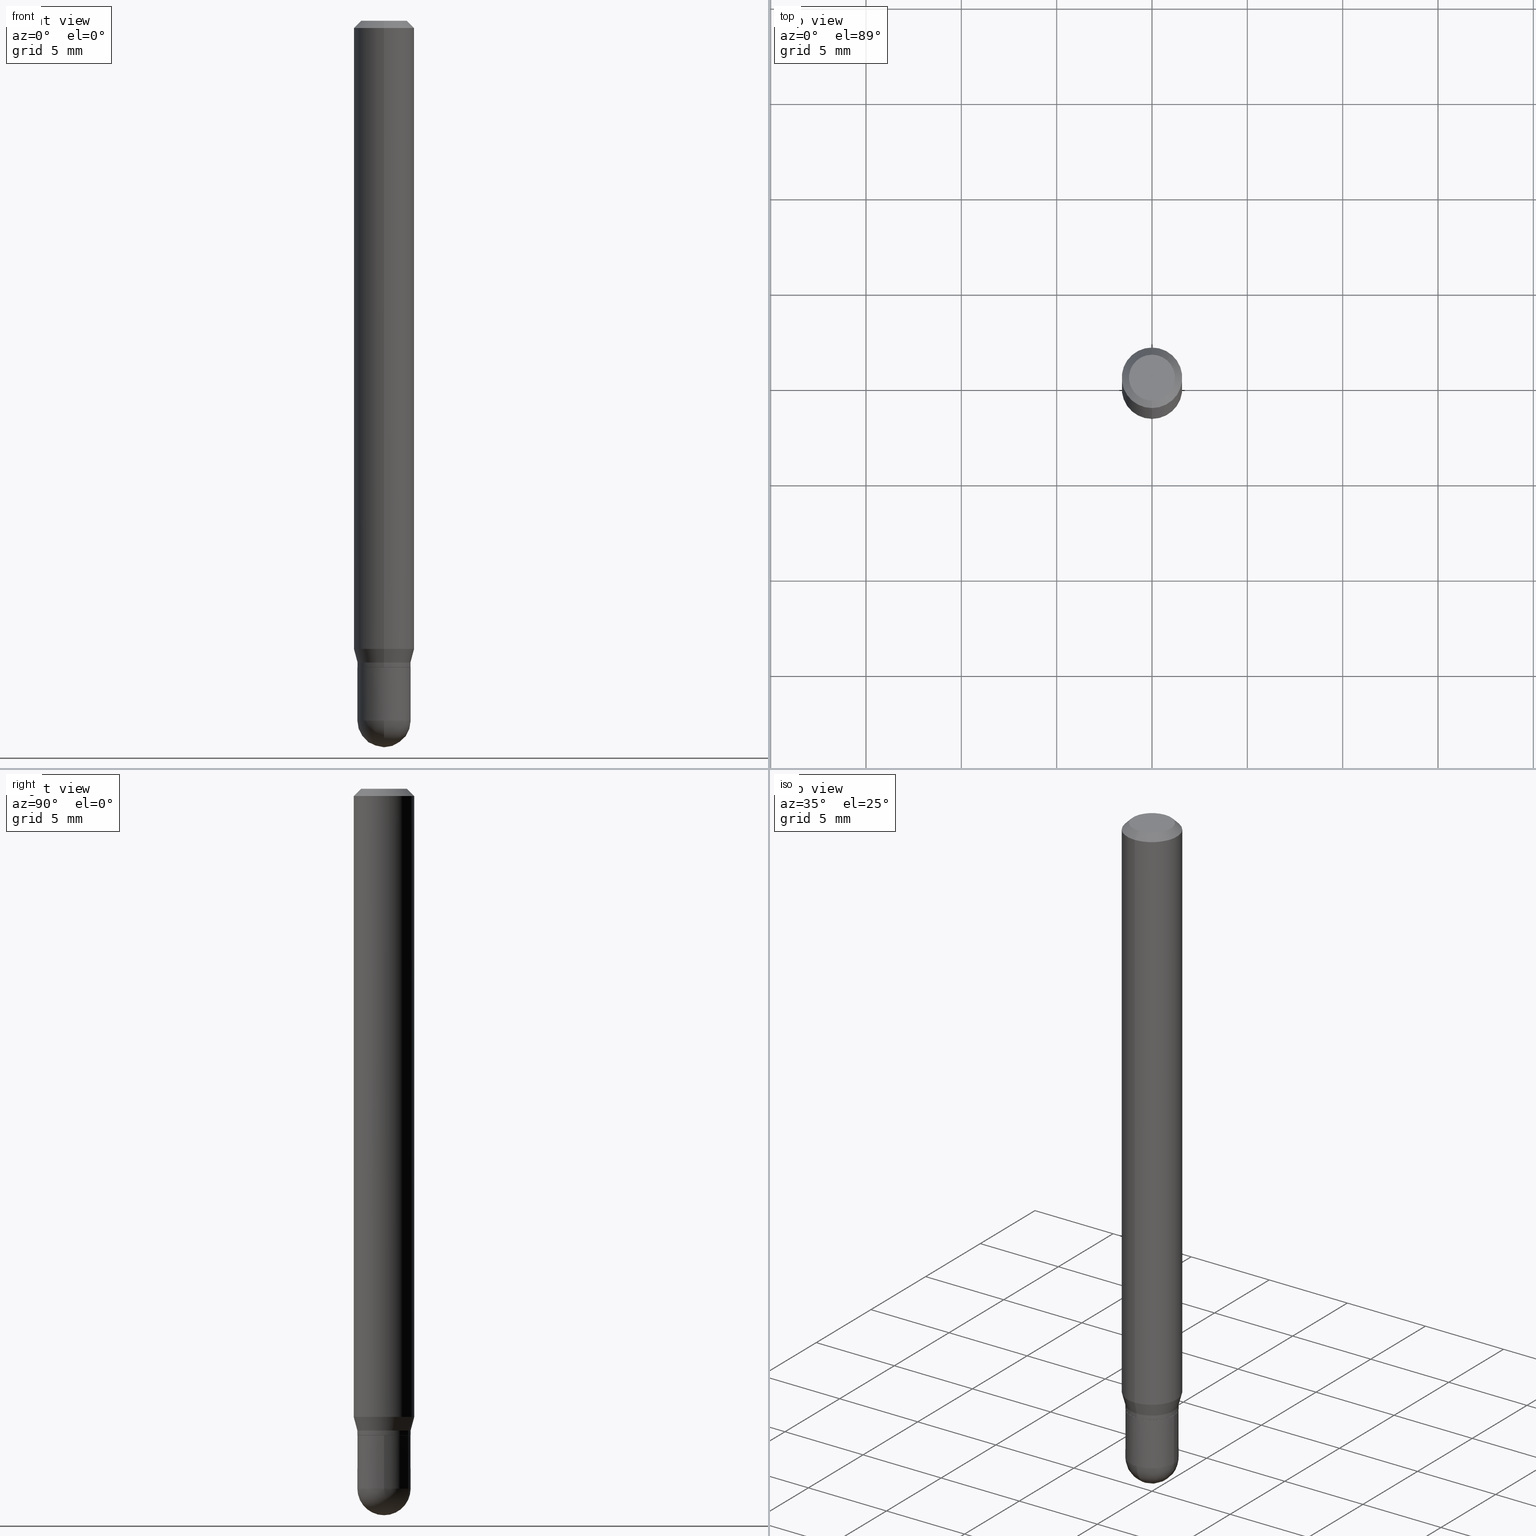
[diagram: canonical four-view strip — front | top / right | iso, engineering-drawing reading convention]
A machine part, canonical four-view strip (front | top / right | iso — engineering-drawing reading convention). The complete STEP part file that produces these views, byte-faithful:
ISO-10303-21;
HEADER;
FILE_DESCRIPTION (( 'STEP AP203' ),
    '1' );
FILE_NAME ('01430.STEP',
    '2024-03-07T20:46:20',
    ( '' ),
    ( '' ),
    'SwSTEP 2.0',
    'SolidWorks 2023',
    '' );
FILE_SCHEMA (( 'CONFIG_CONTROL_DESIGN' ));
ENDSEC;

DATA;
#1 = ADVANCED_FACE ( 'NONE', ( #259 ), #266, .T. ) ;
#2 = CARTESIAN_POINT ( 'NONE',  ( -3.773273898774340269E-16, -0.04749999999999999362, 1.569983304665834349E-16 ) ) ;
#3 = DIRECTION ( 'NONE',  ( -2.445371144208507908E-29, 3.491621196352252256E-15, 1.000000000000000000 ) ) ;
#4 = CIRCLE ( 'NONE', #491, 0.05499999999999992395 ) ;
#5 = EDGE_LOOP ( 'NONE', ( #490, #299, #226, #386 ) ) ;
#6 = FACE_OUTER_BOUND ( 'NONE', #368, .T. ) ;
#7 = ORIENTED_EDGE ( 'NONE', *, *, #268, .T. ) ;
#8 = APPLICATION_CONTEXT ( 'configuration controlled 3d designs of mechanical parts and assemblies' ) ;
#9 = CARTESIAN_POINT ( 'NONE',  ( -3.840629472727099789E-16, -0.05500000000000514894, -1.444999999999999840 ) ) ;
#10 = ORIENTED_EDGE ( 'NONE', *, *, #291, .F. ) ;
#11 = EDGE_CURVE ( 'NONE', #217, #338, #206, .T. ) ;
#12 = CARTESIAN_POINT ( 'NONE',  ( 3.528999010347036160E-29, -5.051926092023656149E-15, -1.445000000000000062 ) ) ;
#13 = ORIENTED_EDGE ( 'NONE', *, *, #268, .F. ) ;
#14 = AXIS2_PLACEMENT_3D ( 'NONE', #275, #470, #82 ) ;
#15 = CARTESIAN_POINT ( 'NONE',  ( 3.264570477518358750E-29, -4.661314297130257366E-15, -1.335000000000000187 ) ) ;
#16 = ORIENTED_EDGE ( 'NONE', *, *, #454, .F. ) ;
#17 = ADVANCED_FACE ( 'NONE', ( #23 ), #465, .T. ) ;
#18 = CARTESIAN_POINT ( 'NONE',  ( -0.05500000000000000028, 3.907985046680551042E-16, -2.705414299640198362E-30 ) ) ;
#19 = ORIENTED_EDGE ( 'NONE', *, *, #395, .F. ) ;
#20 = DIRECTION ( 'NONE',  ( -6.982962677686265922E-15, -1.000000000000000000, 4.966996352116849387E-15 ) ) ;
#21 = ORIENTED_EDGE ( 'NONE', *, *, #11, .T. ) ;
#22 = CYLINDRICAL_SURFACE ( 'NONE', #285, 0.06250000000000000000 ) ;
#23 = FACE_OUTER_BOUND ( 'NONE', #342, .T. ) ;
#24 = EDGE_CURVE ( 'NONE', #254, #249, #180, .T. ) ;
#25 = DIRECTION ( 'NONE',  ( -6.982962677686266711E-15, -1.000000000000000000, 3.491621196352252651E-15 ) ) ;
#26 = VERTEX_POINT ( 'NONE', #121 ) ;
#27 = ORIENTED_EDGE ( 'NONE', *, *, #309, .F. ) ;
#28 = APPROVAL_DATE_TIME ( #73, #302 ) ;
#29 = AXIS2_PLACEMENT_3D ( 'NONE', #509, #191, #81 ) ;
#30 = CARTESIAN_POINT ( 'NONE',  ( -3.840629472727440972E-16, -0.05499999999999992395, 1.920391657993736236E-16 ) ) ;
#31 = APPROVAL_ROLE ( '' ) ;
#32 = FACE_OUTER_BOUND ( 'NONE', #453, .T. ) ;
#33 = APPROVAL_STATUS ( 'not_yet_approved' ) ;
#34 = CARTESIAN_POINT ( 'NONE',  ( 3.264700856257157760E-29, -4.661127587355599122E-15, -1.335000000000000187 ) ) ;
#35 = DATE_AND_TIME ( #504, #68 ) ;
#36 = AXIS2_PLACEMENT_3D ( 'NONE', #149, #349, #393 ) ;
#37 = CARTESIAN_POINT ( 'NONE',  ( 3.872457909892871899E-16, 0.05449999999999533690, -1.335000000000000409 ) ) ;
#38 = VECTOR ( 'NONE', #49, 39.37007874015748143 ) ;
#39 = LINE ( 'NONE', #37, #284 ) ;
#40 = CC_DESIGN_PERSON_AND_ORGANIZATION_ASSIGNMENT ( #471, #273, ( #391 ) ) ;
#41 = CARTESIAN_POINT ( 'NONE',  ( 0.000000000000000000, 0.000000000000000000, 0.000000000000000000 ) ) ;
#42 = ORIENTED_EDGE ( 'NONE', *, *, #369, .F. ) ;
#43 = DIRECTION ( 'NONE',  ( -6.982962677686265922E-15, -1.000000000000000000, 3.491621196352252256E-15 ) ) ;
#44 = AXIS2_PLACEMENT_3D ( 'NONE', #256, #102, #218 ) ;
#45 = CIRCLE ( 'NONE', #228, 0.05500000000000000028 ) ;
#46 = ORIENTED_EDGE ( 'NONE', *, *, #384, .T. ) ;
#47 = CARTESIAN_POINT ( 'NONE',  ( 0.05500000000000000028, -5.045190534628344107E-15, -1.335000000000000187 ) ) ;
#48 = ORIENTED_EDGE ( 'NONE', *, *, #178, .T. ) ;
#49 = DIRECTION ( 'NONE',  ( -2.445371144208507908E-29, 3.491621196352251862E-15, 1.000000000000000000 ) ) ;
#50 = CC_DESIGN_PERSON_AND_ORGANIZATION_ASSIGNMENT ( #431, #502, ( #62 ) ) ;
#51 = ORIENTED_EDGE ( 'NONE', *, *, #506, .T. ) ;
#52 = CARTESIAN_POINT ( 'NONE',  ( 4.440892098500943678E-16, 0.06249999999999548972, -1.297009618943233633 ) ) ;
#53 = EDGE_LOOP ( 'NONE', ( #448, #280, #292, #96 ) ) ;
#54 = EDGE_CURVE ( 'NONE', #282, #358, #198, .T. ) ;
#55 = CIRCLE ( 'NONE', #352, 0.05500000000000000028 ) ;
#56 = APPROVAL_PERSON_ORGANIZATION ( #233, #151, #158 ) ;
#57 = DIRECTION ( 'NONE',  ( 4.937700262164548042E-15, 0.7071067811865451302, -0.7071067811865499042 ) ) ;
#58 = ORIENTED_EDGE ( 'NONE', *, *, #88, .T. ) ;
#59 = APPROVAL ( #114, 'UNSPECIFIED' ) ;
#60 = DIRECTION ( 'NONE',  ( -1.000000000000000000, 6.982962677686265922E-15, -4.876176775795935793E-29 ) ) ;
#61 = DIRECTION ( 'NONE',  ( -6.982962677686265922E-15, -1.000000000000000000, 4.966996352116849387E-15 ) ) ;
#62 = PRODUCT ( '01430', '01430', '', ( #263 ) ) ;
#63 = DIRECTION ( 'NONE',  ( -2.445371144208507908E-29, 3.491621196352252256E-15, 1.000000000000000000 ) ) ;
#64 = EDGE_CURVE ( 'NONE', #321, #373, #155, .T. ) ;
#65 = ORIENTED_EDGE ( 'NONE', *, *, #446, .F. ) ;
#66 = APPLICATION_CONTEXT ( 'configuration controlled 3d designs of mechanical parts and assemblies' ) ;
#67 = AXIS2_PLACEMENT_3D ( 'NONE', #207, #95, #320 ) ;
#68 = LOCAL_TIME ( 15, 46, 19.00000000000000000, #190 ) ;
#69 = DIRECTION ( 'NONE',  ( -6.982962677686265922E-15, -1.000000000000000000, 3.491621196352252256E-15 ) ) ;
#70 = ORIENTED_EDGE ( 'NONE', *, *, #161, .T. ) ;
#71 = CALENDAR_DATE ( 2024, 7, 3 ) ;
#72 = ORIENTED_EDGE ( 'NONE', *, *, #419, .F. ) ;
#73 = DATE_AND_TIME ( #429, #400 ) ;
#74 = CARTESIAN_POINT ( 'NONE',  ( 3.661148087391975640E-29, -5.247325344357685057E-15, -1.500000000000000222 ) ) ;
#75 = EDGE_CURVE ( 'NONE', #209, #338, #39, .T. ) ;
#76 = CLOSED_SHELL ( 'NONE', ( #203, #443, #1, #274, #496, #17, #387, #258, #473, #489, #141, #132 ) ) ;
#77 = APPROVAL_STATUS ( 'not_yet_approved' ) ;
#78 = CARTESIAN_POINT ( 'NONE',  ( 3.533702424937522517E-29, -5.045190534628345684E-15, -1.445000000000000062 ) ) ;
#79 = DIRECTION ( 'NONE',  ( -2.445371144208507908E-29, 3.491621196352252256E-15, 1.000000000000000000 ) ) ;
#80 = APPROVAL_DATE_TIME ( #35, #59 ) ;
#81 = DIRECTION ( 'NONE',  ( -6.982962677686265922E-15, -1.000000000000000000, 5.012565125989473962E-15 ) ) ;
#82 = DIRECTION ( 'NONE',  ( -6.982962677686265922E-15, -1.000000000000000000, 4.966996352116824932E-15 ) ) ;
#83 = AXIS2_PLACEMENT_3D ( 'NONE', #293, #63, #20 ) ;
#84 = CONICAL_SURFACE ( 'NONE', #335, 0.05499999999999992395, 0.2617993877991495744 ) ;
#85 = DIRECTION ( 'NONE',  ( -6.982962677686265922E-15, -1.000000000000000000, 4.966996352116824932E-15 ) ) ;
#86 = DIRECTION ( 'NONE',  ( -2.445468806185136597E-29, 3.491481338843145583E-15, 1.000000000000000000 ) ) ;
#87 = ORIENTED_EDGE ( 'NONE', *, *, #404, .F. ) ;
#88 = EDGE_CURVE ( 'NONE', #185, #301, #350, .T. ) ;
#89 = LINE ( 'NONE', #476, #99 ) ;
#90 = AXIS2_PLACEMENT_3D ( 'NONE', #34, #437, #236 ) ;
#91 = VECTOR ( 'NONE', #288, 39.37007874015748143 ) ;
#92 = CC_DESIGN_DATE_AND_TIME_ASSIGNMENT ( #235, #392, ( #219 ) ) ;
#93 = CARTESIAN_POINT ( 'NONE',  ( 3.264570477518358750E-29, -4.661314297130257366E-15, -1.335000000000000187 ) ) ;
#94 = ORIENTED_EDGE ( 'NONE', *, *, #24, .F. ) ;
#95 = DIRECTION ( 'NONE',  ( -2.445371144208507908E-29, 3.491621196352252256E-15, 1.000000000000000000 ) ) ;
#96 = ORIENTED_EDGE ( 'NONE', *, *, #506, .F. ) ;
#97 = DIRECTION ( 'NONE',  ( -2.445371144208507908E-29, 3.491621196352252256E-15, 1.000000000000000000 ) ) ;
#98 = EDGE_LOOP ( 'NONE', ( #167, #331, #42, #126 ) ) ;
#99 = VECTOR ( 'NONE', #125, 39.37007874015748143 ) ;
#100 = CC_DESIGN_APPROVAL ( #151, ( #219 ) ) ;
#101 = CARTESIAN_POINT ( 'NONE',  ( 4.440892098500625669E-16, 0.06250000000000000000, -2.182263247720157660E-16 ) ) ;
#102 = DIRECTION ( 'NONE',  ( 2.445371144208507908E-29, -3.491621196352252256E-15, -1.000000000000000000 ) ) ;
#103 = LINE ( 'NONE', #101, #424 ) ;
#104 = VERTEX_POINT ( 'NONE', #398 ) ;
#105 = EDGE_CURVE ( 'NONE', #373, #249, #264, .T. ) ;
#106 = ORIENTED_EDGE ( 'NONE', *, *, #161, .F. ) ;
#107 = CIRCLE ( 'NONE', #67, 0.06250000000000000000 ) ;
#108 = DIRECTION ( 'NONE',  ( -2.445371144208507908E-29, 3.491621196352252256E-15, 1.000000000000000000 ) ) ;
#109 = ORIENTED_EDGE ( 'NONE', *, *, #239, .F. ) ;
#110 = CARTESIAN_POINT ( 'NONE',  ( -0.05500000000000000028, -4.462360556323917743E-15, -1.445000000000000062 ) ) ;
#111 = PRODUCT_DEFINITION_SHAPE ( 'NONE', 'NONE',  #219 ) ;
#112 = DIRECTION ( 'NONE',  ( -6.982962677686266711E-15, -1.000000000000000000, 3.491621196352252651E-15 ) ) ;
#113 = AXIS2_PLACEMENT_3D ( 'NONE', #257, #97, #144 ) ;
#114 = APPROVAL_STATUS ( 'not_yet_approved' ) ;
#115 = LOCAL_TIME ( 15, 46, 19.00000000000000000, #507 ) ;
#116 = CARTESIAN_POINT ( 'NONE',  ( -3.840629472727108664E-16, -0.05500000000000450362, -1.334500000000000020 ) ) ;
#117 = EDGE_CURVE ( 'NONE', #187, #26, #483, .T. ) ;
#118 = DIRECTION ( 'NONE',  ( 1.000000000000000000, 0.000000000000000000, 0.000000000000000000 ) ) ;
#119 = CARTESIAN_POINT ( 'NONE',  ( -3.840629472727117046E-16, -0.05500000000000455219, -1.324999999999999956 ) ) ;
#120 = PERSON_AND_ORGANIZATION_ROLE ( 'creator' ) ;
#121 = CARTESIAN_POINT ( 'NONE',  ( 3.907985046680910960E-16, 0.05499999999999503897, -1.445000000000000284 ) ) ;
#122 = CARTESIAN_POINT ( 'NONE',  ( -3.805714659338688453E-16, -0.05450000000000466277, -1.334999999999999742 ) ) ;
#123 = CIRCLE ( 'NONE', #500, 0.06250000000000000000 ) ;
#124 = ORGANIZATION ( 'UNSPECIFIED', 'UNSPECIFIED', '' ) ;
#125 = DIRECTION ( 'NONE',  ( -2.445371144208507908E-29, 3.491621196352251862E-15, 1.000000000000000000 ) ) ;
#126 = ORIENTED_EDGE ( 'NONE', *, *, #64, .F. ) ;
#127 = CARTESIAN_POINT ( 'NONE',  ( 3.668056716312763876E-31, -5.237431794528382255E-17, -0.01500000000000000812 ) ) ;
#128 = ORIENTED_EDGE ( 'NONE', *, *, #105, .T. ) ;
#129 = CARTESIAN_POINT ( 'NONE',  ( 0.000000000000000000, 0.000000000000000000, 0.000000000000000000 ) ) ;
#130 = AXIS2_PLACEMENT_3D ( 'NONE', #472, #196, #112 ) ;
#131 = CONICAL_SURFACE ( 'NONE', #29, 0.05449999999999999983, 0.7853981633974739252 ) ;
#132 = ADVANCED_FACE ( 'NONE', ( #232 ), #265, .T. ) ;
#133 = CYLINDRICAL_SURFACE ( 'NONE', #433, 0.05500000000000000028 ) ;
#134 = ORIENTED_EDGE ( 'NONE', *, *, #291, .T. ) ;
#135 = DIRECTION ( 'NONE',  ( 6.982962677686265922E-15, 1.000000000000000000, -3.491621196352251862E-15 ) ) ;
#136 = ORIENTED_EDGE ( 'NONE', *, *, #64, .T. ) ;
#137 = PLANE ( 'NONE',  #287 ) ;
#138 = ORIENTED_EDGE ( 'NONE', *, *, #54, .T. ) ;
#139 = AXIS2_PLACEMENT_3D ( 'NONE', #127, #410, #323 ) ;
#140 = ORIENTED_EDGE ( 'NONE', *, *, #197, .F. ) ;
#141 = ADVANCED_FACE ( 'NONE', ( #32 ), #131, .T. ) ;
#142 = FACE_OUTER_BOUND ( 'NONE', #175, .T. ) ;
#143 = VERTEX_POINT ( 'NONE', #110 ) ;
#144 = DIRECTION ( 'NONE',  ( -6.982962677686265922E-15, -1.000000000000000000, 5.012565125989473962E-15 ) ) ;
#145 = EDGE_LOOP ( 'NONE', ( #10, #179, #324, #340 ) ) ;
#146 = CIRCLE ( 'NONE', #414, 0.05449999999999999983 ) ;
#147 = DATE_TIME_ROLE ( 'classification_date' ) ;
#148 = ADVANCED_FACE ( 'NONE', ( #201 ), #355, .T. ) ;
#149 = CARTESIAN_POINT ( 'NONE',  ( 3.528999010347036160E-29, -5.051926092023656149E-15, -1.445000000000000062 ) ) ;
#150 = APPROVAL_DATE_TIME ( #341, #151 ) ;
#151 = APPROVAL ( #77, 'UNSPECIFIED' ) ;
#152 = DIRECTION ( 'NONE',  ( -2.445371144208507908E-29, 3.491621196352251862E-15, 1.000000000000000000 ) ) ;
#153 =( CONVERSION_BASED_UNIT ( 'INCH', #307 ) LENGTH_UNIT ( ) NAMED_UNIT ( #231 ) );
#154 = DIRECTION ( 'NONE',  ( -6.982962677686265922E-15, -1.000000000000000000, 3.491621196352252651E-15 ) ) ;
#155 = CIRCLE ( 'NONE', #508, 0.05500000000000000028 ) ;
#156 = CARTESIAN_POINT ( 'NONE',  ( 0.000000000000000000, 0.000000000000000000, 0.000000000000000000 ) ) ;
#157 = CC_DESIGN_PERSON_AND_ORGANIZATION_ASSIGNMENT ( #394, #120, ( #189 ) ) ;
#158 = APPROVAL_ROLE ( '' ) ;
#159 = DIRECTION ( 'NONE',  ( -2.445371144208507908E-29, 3.491621196352252256E-15, 1.000000000000000000 ) ) ;
#160 = CARTESIAN_POINT ( 'NONE',  ( 3.533702424937522517E-29, -5.045190534628345684E-15, -1.445000000000000062 ) ) ;
#161 = EDGE_CURVE ( 'NONE', #104, #456, #123, .T. ) ;
#162 = DIRECTION ( 'NONE',  ( -2.445468806185136597E-29, 3.491481338843145583E-15, 1.000000000000000000 ) ) ;
#163 = ORIENTED_EDGE ( 'NONE', *, *, #105, .F. ) ;
#164 = DIRECTION ( 'NONE',  ( -6.982962677686265922E-15, -1.000000000000000000, 3.483106191921935554E-15 ) ) ;
#165 = PRODUCT_RELATED_PRODUCT_CATEGORY ( 'detail', '', ( #62 ) ) ;
#166 = PERSON ( 'UNSPECIFIED', 'UNSPECIFIED', 'UNSPECIFIED', ('UNSPECIFIED'), ('UNSPECIFIED'), ('UNSPECIFIED') ) ;
#167 = ORIENTED_EDGE ( 'NONE', *, *, #351, .F. ) ;
#168 = FACE_OUTER_BOUND ( 'NONE', #336, .T. ) ;
#169 = EDGE_LOOP ( 'NONE', ( #495, #7, #46, #106 ) ) ;
#170 = EDGE_CURVE ( 'NONE', #358, #442, #503, .T. ) ;
#171 = CARTESIAN_POINT ( 'NONE',  ( 3.533702424937522517E-29, -5.045190534628345684E-15, -1.445000000000000062 ) ) ;
#172 = ORIENTED_EDGE ( 'NONE', *, *, #239, .T. ) ;
#173 = LINE ( 'NONE', #330, #237 ) ;
#174 =( LENGTH_UNIT ( ) NAMED_UNIT ( * ) SI_UNIT ( $, .METRE. ) );
#175 = EDGE_LOOP ( 'NONE', ( #223, #27 ) ) ;
#176 = UNCERTAINTY_MEASURE_WITH_UNIT (LENGTH_MEASURE( 1.000000000000000082E-05 ), #153, 'distance_accuracy_value', 'NONE');
#177 = LINE ( 'NONE', #18, #407 ) ;
#178 = EDGE_CURVE ( 'NONE', #26, #143, #55, .T. ) ;
#179 = ORIENTED_EDGE ( 'NONE', *, *, #419, .T. ) ;
#180 = CIRCLE ( 'NONE', #90, 0.05500000000000000028 ) ;
#181 = CIRCLE ( 'NONE', #467, 0.04749999999999999362 ) ;
#182 = PLANE ( 'NONE',  #252 ) ;
#183 = ORIENTED_EDGE ( 'NONE', *, *, #224, .F. ) ;
#184 = CARTESIAN_POINT ( 'NONE',  ( 0.000000000000000000, 0.000000000000000000, 0.000000000000000000 ) ) ;
#185 = VERTEX_POINT ( 'NONE', #315 ) ;
#186 = APPLICATION_PROTOCOL_DEFINITION ( 'international standard', 'config_control_design', 1994, #8 ) ;
#187 = VERTEX_POINT ( 'NONE', #74 ) ;
#188 = CIRCLE ( 'NONE', #475, 0.05500000000000018763 ) ;
#189 = PRODUCT_DEFINITION_FORMATION_WITH_SPECIFIED_SOURCE ( 'ANY', '', #62, .NOT_KNOWN. ) ;
#190 = COORDINATED_UNIVERSAL_TIME_OFFSET ( 5, 0, .BEHIND. ) ;
#191 = DIRECTION ( 'NONE',  ( -2.445371144208507908E-29, 3.491621196352252256E-15, 1.000000000000000000 ) ) ;
#192 = COORDINATED_UNIVERSAL_TIME_OFFSET ( 5, 0, .BEHIND. ) ;
#193 = CARTESIAN_POINT ( 'NONE',  ( 3.668056716312763876E-31, -5.237431794528382255E-17, -0.01500000000000000812 ) ) ;
#194 = MANIFOLD_SOLID_BREP ( 'Body-Move/Copy2[1]', #359 ) ;
#195 = PERSON_AND_ORGANIZATION_ROLE ( 'creator' ) ;
#196 = DIRECTION ( 'NONE',  ( -2.445371144208507908E-29, 3.491621196352252256E-15, 1.000000000000000000 ) ) ;
#197 = EDGE_CURVE ( 'NONE', #217, #358, #227, .T. ) ;
#198 = CIRCLE ( 'NONE', #379, 0.05499999999999992395 ) ;
#199 = CIRCLE ( 'NONE', #317, 0.06250000000000000000 ) ;
#200 = DIRECTION ( 'NONE',  ( 0.000000000000000000, 0.000000000000000000, 1.000000000000000000 ) ) ;
#201 = FACE_OUTER_BOUND ( 'NONE', #498, .T. ) ;
#202 = DIRECTION ( 'NONE',  ( -2.445468806185136877E-29, 3.491481338843145188E-15, 1.000000000000000000 ) ) ;
#203 = ADVANCED_FACE ( 'NONE', ( #270 ), #308, .T. ) ;
#204 = DIRECTION ( 'NONE',  ( 1.000000000000000000, -6.982962677686266711E-15, 4.876176775795935793E-29 ) ) ;
#205 = EDGE_LOOP ( 'NONE', ( #412, #493 ) ) ;
#206 = CIRCLE ( 'NONE', #332, 0.05499999999999992395 ) ;
#207 = CARTESIAN_POINT ( 'NONE',  ( 3.171669895924655731E-29, -4.528666277374951115E-15, -1.297009618943233411 ) ) ;
#208 = CC_DESIGN_SECURITY_CLASSIFICATION ( #391, ( #189 ) ) ;
#209 = VERTEX_POINT ( 'NONE', #310 ) ;
#210 = FACE_OUTER_BOUND ( 'NONE', #421, .T. ) ;
#211 = ORIENTED_EDGE ( 'NONE', *, *, #411, .T. ) ;
#212 = CARTESIAN_POINT ( 'NONE',  ( -4.287811248607203282E-16, -0.06250000000000005551, -0.01499999999999979128 ) ) ;
#213 = CC_DESIGN_PERSON_AND_ORGANIZATION_ASSIGNMENT ( #512, #469, ( #189 ) ) ;
#214 = DIRECTION ( 'NONE',  ( -2.445371144208507908E-29, 3.491621196352252256E-15, 1.000000000000000000 ) ) ;
#215 = CIRCLE ( 'NONE', #83, 0.05499999999999992395 ) ;
#216 = DIRECTION ( 'NONE',  ( -6.982962677686265922E-15, -1.000000000000000000, 5.012565125989473962E-15 ) ) ;
#217 = VERTEX_POINT ( 'NONE', #116 ) ;
#218 = DIRECTION ( 'NONE',  ( 6.982962677686265922E-15, 1.000000000000000000, -3.483106191921935554E-15 ) ) ;
#219 = PRODUCT_DEFINITION ( 'UNKNOWN', '', #189, #376 ) ;
#220 = CARTESIAN_POINT ( 'NONE',  ( 3.264570477518358750E-29, -4.661314297130257366E-15, -1.335000000000000187 ) ) ;
#221 = CARTESIAN_POINT ( 'NONE',  ( 3.263347791946254120E-29, -4.659568486532081059E-15, -1.334500000000000242 ) ) ;
#222 = DIRECTION ( 'NONE',  ( -6.982962677686265922E-15, -1.000000000000000000, 4.966996352116849387E-15 ) ) ;
#223 = ORIENTED_EDGE ( 'NONE', *, *, #411, .F. ) ;
#224 = EDGE_CURVE ( 'NONE', #456, #104, #199, .T. ) ;
#225 = DATE_AND_TIME ( #71, #318 ) ;
#226 = ORIENTED_EDGE ( 'NONE', *, *, #428, .F. ) ;
#227 = LINE ( 'NONE', #30, #325 ) ;
#228 = AXIS2_PLACEMENT_3D ( 'NONE', #160, #286, #474 ) ;
#229 = APPROVAL_PERSON_ORGANIZATION ( #314, #59, #31 ) ;
#230 = COORDINATED_UNIVERSAL_TIME_OFFSET ( 5, 0, .BEHIND. ) ;
#231 = DIMENSIONAL_EXPONENTS ( 1.000000000000000000, 0.000000000000000000, 0.000000000000000000, 0.000000000000000000, 0.000000000000000000, 0.000000000000000000, 0.000000000000000000 ) ;
#232 = FACE_OUTER_BOUND ( 'NONE', #145, .T. ) ;
#233 = PERSON_AND_ORGANIZATION ( #166, #124 ) ;
#234 = DIRECTION ( 'NONE',  ( -6.982962677686265922E-15, -1.000000000000000000, 4.966996352116849387E-15 ) ) ;
#235 = DATE_AND_TIME ( #436, #440 ) ;
#236 = DIRECTION ( 'NONE',  ( 1.000000000000000000, -6.982962677686262766E-15, 0.000000000000000000 ) ) ;
#237 = VECTOR ( 'NONE', #339, 39.37007874015748143 ) ;
#238 = CARTESIAN_POINT ( 'NONE',  ( 3.240116766076273994E-29, -4.626398085166735955E-15, -1.325000000000000178 ) ) ;
#239 = EDGE_CURVE ( 'NONE', #143, #321, #276, .T. ) ;
#240 = CARTESIAN_POINT ( 'NONE',  ( 3.907985046680545126E-16, 0.05499999999999992395, -1.920391657993736236E-16 ) ) ;
#241 = CARTESIAN_POINT ( 'NONE',  ( -0.05500000000000000028, -4.462360556323917743E-15, -1.335000000000000187 ) ) ;
#242 = ORIENTED_EDGE ( 'NONE', *, *, #88, .F. ) ;
#243 = AXIS2_PLACEMENT_3D ( 'NONE', #425, #432, #234 ) ;
#244 = AXIS2_PLACEMENT_3D ( 'NONE', #505, #464, #154 ) ;
#245 = DIRECTION ( 'NONE',  ( 1.000000000000000000, -6.982962677686262766E-15, 0.000000000000000000 ) ) ;
#246 = CARTESIAN_POINT ( 'NONE',  ( 3.907985046680876940E-16, 0.05499999999999535122, -1.334500000000000464 ) ) ;
#247 = VERTEX_POINT ( 'NONE', #122 ) ;
#248 = FACE_OUTER_BOUND ( 'NONE', #98, .T. ) ;
#249 = VERTEX_POINT ( 'NONE', #47 ) ;
#250 = DIRECTION ( 'NONE',  ( 2.445371144208507908E-29, -3.491621196352251862E-15, -1.000000000000000000 ) ) ;
#251 = ORIENTED_EDGE ( 'NONE', *, *, #454, .T. ) ;
#252 = AXIS2_PLACEMENT_3D ( 'NONE', #459, #337, #60 ) ;
#253 = DIRECTION ( 'NONE',  ( -2.445371144208507908E-29, 3.491621196352251862E-15, 1.000000000000000000 ) ) ;
#254 = VERTEX_POINT ( 'NONE', #241 ) ;
#255 = CARTESIAN_POINT ( 'NONE',  ( -4.364351673553597698E-16, -0.06250000000000451028, -1.297009618943233189 ) ) ;
#256 = CARTESIAN_POINT ( 'NONE',  ( 3.668056716312763876E-31, -5.237431794528382255E-17, -0.01500000000000000812 ) ) ;
#257 = CARTESIAN_POINT ( 'NONE',  ( 3.264570477518358750E-29, -4.661314297130257366E-15, -1.335000000000000187 ) ) ;
#258 = ADVANCED_FACE ( 'NONE', ( #210 ), #260, .T. ) ;
#259 = FACE_OUTER_BOUND ( 'NONE', #53, .T. ) ;
#260 = CONICAL_SURFACE ( 'NONE', #139, 0.06250000000000000000, 0.7853981633974483900 ) ;
#261 = CARTESIAN_POINT ( 'NONE',  ( 3.316907271900976096E-16, 0.04749999999999999362, -1.702788450068062563E-16 ) ) ;
#262 = EDGE_LOOP ( 'NONE', ( #403, #427, #183, #409 ) ) ;
#263 = MECHANICAL_CONTEXT ( 'NONE', #8, 'mechanical' ) ;
#264 = LINE ( 'NONE', #501, #422 ) ;
#265 = CYLINDRICAL_SURFACE ( 'NONE', #343, 0.05499999999999992395 ) ;
#266 = CONICAL_SURFACE ( 'NONE', #44, 0.06250000000000000000, 0.7853981633974483900 ) ;
#267 = VECTOR ( 'NONE', #420, 39.37007874015748854 ) ;
#268 = EDGE_CURVE ( 'NONE', #363, #442, #107, .T. ) ;
#269 =( NAMED_UNIT ( * ) SI_UNIT ( $, .STERADIAN. ) SOLID_ANGLE_UNIT ( ) );
#270 = FACE_OUTER_BOUND ( 'NONE', #478, .T. ) ;
#271 = APPLICATION_PROTOCOL_DEFINITION ( 'international standard', 'config_control_design', 1994, #66 ) ;
#272 = DIRECTION ( 'NONE',  ( -2.445468806185136597E-29, 3.491481338843145583E-15, 1.000000000000000000 ) ) ;
#273 = PERSON_AND_ORGANIZATION_ROLE ( 'classification_officer' ) ;
#274 = ADVANCED_FACE ( 'NONE', ( #277 ), #408, .T. ) ;
#275 = CARTESIAN_POINT ( 'NONE',  ( 3.528999010347036160E-29, -5.051926092023656149E-15, -1.445000000000000062 ) ) ;
#276 = CIRCLE ( 'NONE', #311, 0.05500000000000000028 ) ;
#277 = FACE_OUTER_BOUND ( 'NONE', #262, .T. ) ;
#278 = EDGE_LOOP ( 'NONE', ( #58, #458 ) ) ;
#279 = FACE_OUTER_BOUND ( 'NONE', #169, .T. ) ;
#280 = ORIENTED_EDGE ( 'NONE', *, *, #345, .T. ) ;
#281 = DIRECTION ( 'NONE',  ( 1.000000000000000000, -6.982962677686262766E-15, 0.000000000000000000 ) ) ;
#282 = VERTEX_POINT ( 'NONE', #481 ) ;
#283 = ADVANCED_FACE ( 'NONE', ( #248 ), #444, .T. ) ;
#284 = VECTOR ( 'NONE', #389, 39.37007874015748143 ) ;
#285 = AXIS2_PLACEMENT_3D ( 'NONE', #184, #452, #69 ) ;
#286 = DIRECTION ( 'NONE',  ( -2.445468806185136597E-29, 3.491481338843145583E-15, 1.000000000000000000 ) ) ;
#287 = AXIS2_PLACEMENT_3D ( 'NONE', #261, #250, #135 ) ;
#288 = DIRECTION ( 'NONE',  ( -4.851104656540964275E-15, -0.7071067811865500152, -0.7071067811865450192 ) ) ;
#289 = ORIENTED_EDGE ( 'NONE', *, *, #170, .T. ) ;
#290 = CARTESIAN_POINT ( 'NONE',  ( -4.364351673553912750E-16, -0.06250000000000005551, -0.01499999999999979128 ) ) ;
#291 = EDGE_CURVE ( 'NONE', #338, #282, #326, .T. ) ;
#292 = ORIENTED_EDGE ( 'NONE', *, *, #224, .T. ) ;
#293 = CARTESIAN_POINT ( 'NONE',  ( 3.263347791946254120E-29, -4.659568486532081059E-15, -1.334500000000000242 ) ) ;
#294 = CIRCLE ( 'NONE', #439, 0.05449999999999999983 ) ;
#295 =( GEOMETRIC_REPRESENTATION_CONTEXT ( 3 ) GLOBAL_UNCERTAINTY_ASSIGNED_CONTEXT ( ( #176 ) ) GLOBAL_UNIT_ASSIGNED_CONTEXT ( ( #153, #385, #269 ) ) REPRESENTATION_CONTEXT ( 'NONE', 'WORKASPACE' ) );
#296 = ORIENTED_EDGE ( 'NONE', *, *, #369, .T. ) ;
#297 = CC_DESIGN_PERSON_AND_ORGANIZATION_ASSIGNMENT ( #354, #195, ( #219 ) ) ;
#298 = DIRECTION ( 'NONE',  ( -2.445468806185136877E-29, 3.491481338843145188E-15, 1.000000000000000000 ) ) ;
#299 = ORIENTED_EDGE ( 'NONE', *, *, #446, .T. ) ;
#300 = PLANE ( 'NONE',  #327 ) ;
#301 = VERTEX_POINT ( 'NONE', #2 ) ;
#302 = APPROVAL ( #33, 'UNSPECIFIED' ) ;
#303 = FACE_OUTER_BOUND ( 'NONE', #205, .T. ) ;
#304 = ORIENTED_EDGE ( 'NONE', *, *, #178, .F. ) ;
#305 = PERSON_AND_ORGANIZATION ( #166, #124 ) ;
#306 = DIRECTION ( 'NONE',  ( -1.807323732225325406E-15, -0.2588190451025175198, 0.9659258262890690894 ) ) ;
#307 = LENGTH_MEASURE_WITH_UNIT ( LENGTH_MEASURE( 0.02539999999999999897 ), #174 );
#308 = CYLINDRICAL_SURFACE ( 'NONE', #244, 0.05499999999999992395 ) ;
#309 = EDGE_CURVE ( 'NONE', #209, #247, #146, .T. ) ;
#310 = CARTESIAN_POINT ( 'NONE',  ( 3.890221478286871955E-16, 0.05449999999999533690, -1.335000000000000409 ) ) ;
#311 = AXIS2_PLACEMENT_3D ( 'NONE', #171, #86, #245 ) ;
#312 = CARTESIAN_POINT ( 'NONE',  ( 0.000000000000000000, 0.000000000000000000, 0.000000000000000000 ) ) ;
#313 = DIRECTION ( 'NONE',  ( -6.982962677686265922E-15, -1.000000000000000000, 4.966996352116849387E-15 ) ) ;
#314 = PERSON_AND_ORGANIZATION ( #166, #124 ) ;
#315 = CARTESIAN_POINT ( 'NONE',  ( 3.840629472727447874E-16, 0.04749999999999999362, -1.747056831868805136E-16 ) ) ;
#316 = AXIS2_PLACEMENT_3D ( 'NONE', #12, #441, #85 ) ;
#317 = AXIS2_PLACEMENT_3D ( 'NONE', #435, #79, #164 ) ;
#318 = LOCAL_TIME ( 15, 46, 19.00000000000000000, #192 ) ;
#319 = DIRECTION ( 'NONE',  ( 1.000000000000000000, -6.982962677686266711E-15, 4.876176775795935793E-29 ) ) ;
#320 = DIRECTION ( 'NONE',  ( -6.982962677686265922E-15, -1.000000000000000000, 4.370956789862821150E-15 ) ) ;
#321 = VERTEX_POINT ( 'NONE', #9 ) ;
#322 = EDGE_CURVE ( 'NONE', #249, #254, #399, .T. ) ;
#323 = DIRECTION ( 'NONE',  ( 6.982962677686265922E-15, 1.000000000000000000, -3.483106191921935554E-15 ) ) ;
#324 = ORIENTED_EDGE ( 'NONE', *, *, #197, .T. ) ;
#325 = VECTOR ( 'NONE', #152, 39.37007874015748143 ) ;
#326 = LINE ( 'NONE', #240, #38 ) ;
#327 = AXIS2_PLACEMENT_3D ( 'NONE', #15, #415, #492 ) ;
#328 = ADVANCED_FACE ( 'NONE', ( #6 ), #133, .T. ) ;
#329 = FACE_OUTER_BOUND ( 'NONE', #5, .T. ) ;
#330 = CARTESIAN_POINT ( 'NONE',  ( -3.805714659338688453E-16, -0.05450000000000466277, -1.334999999999999742 ) ) ;
#331 = ORIENTED_EDGE ( 'NONE', *, *, #117, .T. ) ;
#332 = AXIS2_PLACEMENT_3D ( 'NONE', #221, #418, #61 ) ;
#333 = CARTESIAN_POINT ( 'NONE',  ( 2.165052469126822300E-46, -3.091368404473746049E-32, -8.853676360148528563E-18 ) ) ;
#334 = CONICAL_SURFACE ( 'NONE', #113, 0.05449999999999999983, 0.7853981633974739252 ) ;
#335 = AXIS2_PLACEMENT_3D ( 'NONE', #487, #417, #222 ) ;
#336 = EDGE_LOOP ( 'NONE', ( #16, #172, #136, #128, #94 ) ) ;
#337 = DIRECTION ( 'NONE',  ( 2.438088387897960049E-29, -3.491481338843145188E-15, -1.000000000000000000 ) ) ;
#338 = VERTEX_POINT ( 'NONE', #246 ) ;
#339 = DIRECTION ( 'NONE',  ( -4.937700262164674260E-15, -0.7071067811865632269, 0.7071067811865319186 ) ) ;
#340 = ORIENTED_EDGE ( 'NONE', *, *, #54, .F. ) ;
#341 = DATE_AND_TIME ( #397, #115 ) ;
#342 = EDGE_LOOP ( 'NONE', ( #65, #138, #289, #13 ) ) ;
#343 = AXIS2_PLACEMENT_3D ( 'NONE', #156, #463, #466 ) ;
#344 = SHAPE_DEFINITION_REPRESENTATION ( #111, #462 ) ;
#345 = EDGE_CURVE ( 'NONE', #301, #456, #365, .T. ) ;
#346 = DIRECTION ( 'NONE',  ( 1.000000000000000000, -6.982962677686262766E-15, 0.000000000000000000 ) ) ;
#347 = CARTESIAN_POINT ( 'NONE',  ( 3.533702424937522517E-29, -5.045190534628345684E-15, -1.445000000000000062 ) ) ;
#348 = APPROVAL_ROLE ( '' ) ;
#349 = DIRECTION ( 'NONE',  ( 1.000000000000000000, -7.105427357601001070E-15, 4.926315508542082329E-29 ) ) ;
#350 = CIRCLE ( 'NONE', #130, 0.04749999999999999362 ) ;
#351 = EDGE_CURVE ( 'NONE', #187, #321, #188, .T. ) ;
#352 = AXIS2_PLACEMENT_3D ( 'NONE', #347, #272, #346 ) ;
#353 = APPROVAL_PERSON_ORGANIZATION ( #305, #302, #348 ) ;
#354 = PERSON_AND_ORGANIZATION ( #166, #124 ) ;
#355 = SPHERICAL_SURFACE ( 'NONE', #14, 0.05500000000000018763 ) ;
#356 = CARTESIAN_POINT ( 'NONE',  ( 3.528999010347036160E-29, -5.051926092023656149E-15, -1.445000000000000062 ) ) ;
#357 = DIRECTION ( 'NONE',  ( -1.000000000000000000, 6.982962677686265922E-15, -4.883557194083112340E-29 ) ) ;
#358 = VERTEX_POINT ( 'NONE', #413 ) ;
#359 = CLOSED_SHELL ( 'NONE', ( #328, #283, #468, #148, #361 ) ) ;
#360 = AXIS2_PLACEMENT_3D ( 'NONE', #402, #162, #281 ) ;
#361 = ADVANCED_FACE ( 'NONE', ( #168 ), #447, .T. ) ;
#362 = DIRECTION ( 'NONE',  ( -2.445371144208507908E-29, 3.491621196352252256E-15, 1.000000000000000000 ) ) ;
#363 = VERTEX_POINT ( 'NONE', #52 ) ;
#364 = MANIFOLD_SOLID_BREP ( 'Body-Move/Copy2[2]', #76 ) ;
#365 = LINE ( 'NONE', #212, #91 ) ;
#366 = ORIENTED_EDGE ( 'NONE', *, *, #11, .F. ) ;
#367 = CARTESIAN_POINT ( 'NONE',  ( 0.05500000000000000028, -5.237222008264716599E-15, -1.445000000000000062 ) ) ;
#368 = EDGE_LOOP ( 'NONE', ( #48, #251, #406, #163, #296 ) ) ;
#369 = EDGE_CURVE ( 'NONE', #373, #26, #45, .T. ) ;
#370 = AXIS2_PLACEMENT_3D ( 'NONE', #488, #371, #455 ) ;
#371 = DIRECTION ( 'NONE',  ( -2.445371144208507908E-29, 3.491621196352252256E-15, 1.000000000000000000 ) ) ;
#372 = VECTOR ( 'NONE', #57, 39.37007874015748143 ) ;
#373 = VERTEX_POINT ( 'NONE', #367 ) ;
#374 = LINE ( 'NONE', #380, #267 ) ;
#375 = ORIENTED_EDGE ( 'NONE', *, *, #309, .T. ) ;
#376 = DESIGN_CONTEXT ( 'detailed design', #66, 'design' ) ;
#377 = CARTESIAN_POINT ( 'NONE',  ( 3.240116766076273994E-29, -4.626398085166735955E-15, -1.325000000000000178 ) ) ;
#378 = ORIENTED_EDGE ( 'NONE', *, *, #117, .F. ) ;
#379 = AXIS2_PLACEMENT_3D ( 'NONE', #238, #438, #313 ) ;
#380 = CARTESIAN_POINT ( 'NONE',  ( 3.907985046680869052E-16, 0.05499999999999529571, -1.325000000000000400 ) ) ;
#381 = ORIENTED_EDGE ( 'NONE', *, *, #345, .F. ) ;
#382 = DIRECTION ( 'NONE',  ( -6.982962677686265922E-15, -1.000000000000000000, 4.966996352116849387E-15 ) ) ;
#383 = EDGE_LOOP ( 'NONE', ( #211, #451, #366, #87 ) ) ;
#384 = EDGE_CURVE ( 'NONE', #442, #456, #89, .T. ) ;
#385 =( NAMED_UNIT ( * ) PLANE_ANGLE_UNIT ( ) SI_UNIT ( $, .RADIAN. ) );
#386 = ORIENTED_EDGE ( 'NONE', *, *, #170, .F. ) ;
#387 = ADVANCED_FACE ( 'NONE', ( #279 ), #22, .T. ) ;
#388 = COORDINATED_UNIVERSAL_TIME_OFFSET ( 5, 0, .BEHIND. ) ;
#389 = DIRECTION ( 'NONE',  ( 5.024295867788190974E-15, 0.7071067811865681119, 0.7071067811865270336 ) ) ;
#390 = AXIS2_PLACEMENT_3D ( 'NONE', #129, #479, #319 ) ;
#391 = SECURITY_CLASSIFICATION ( '', '', #499 ) ;
#392 = DATE_TIME_ROLE ( 'creation_date' ) ;
#393 = DIRECTION ( 'NONE',  ( 7.105427357601001070E-15, 1.000000000000000000, 0.000000000000000000 ) ) ;
#394 = PERSON_AND_ORGANIZATION ( #166, #124 ) ;
#395 = EDGE_CURVE ( 'NONE', #358, #282, #4, .T. ) ;
#396 = DIRECTION ( 'NONE',  ( -2.445468806185136597E-29, 3.491481338843145583E-15, 1.000000000000000000 ) ) ;
#397 = CALENDAR_DATE ( 2024, 7, 3 ) ;
#398 = CARTESIAN_POINT ( 'NONE',  ( 4.440892098500945650E-16, 0.06249999999999995143, -0.01500000000000022669 ) ) ;
#399 = CIRCLE ( 'NONE', #360, 0.05500000000000000028 ) ;
#400 = LOCAL_TIME ( 15, 46, 19.00000000000000000, #388 ) ;
#401 = DIRECTION ( 'NONE',  ( 1.000000000000000000, -6.982962677686262766E-15, 0.000000000000000000 ) ) ;
#402 = CARTESIAN_POINT ( 'NONE',  ( 3.264700856257157760E-29, -4.661127587355599122E-15, -1.335000000000000187 ) ) ;
#403 = ORIENTED_EDGE ( 'NONE', *, *, #428, .T. ) ;
#404 = EDGE_CURVE ( 'NONE', #247, #217, #173, .T. ) ;
#405 = DIRECTION ( 'NONE',  ( -6.982962677686265922E-15, -1.000000000000000000, 0.000000000000000000 ) ) ;
#406 = ORIENTED_EDGE ( 'NONE', *, *, #322, .F. ) ;
#407 = VECTOR ( 'NONE', #298, 39.37007874015748143 ) ;
#408 = CYLINDRICAL_SURFACE ( 'NONE', #484, 0.06250000000000000000 ) ;
#409 = ORIENTED_EDGE ( 'NONE', *, *, #384, .F. ) ;
#410 = DIRECTION ( 'NONE',  ( 2.445371144208507908E-29, -3.491621196352252256E-15, -1.000000000000000000 ) ) ;
#411 = EDGE_CURVE ( 'NONE', #247, #209, #294, .T. ) ;
#412 = ORIENTED_EDGE ( 'NONE', *, *, #322, .T. ) ;
#413 = CARTESIAN_POINT ( 'NONE',  ( -3.840629472727117046E-16, -0.05500000000000455219, -1.324999999999999956 ) ) ;
#414 = AXIS2_PLACEMENT_3D ( 'NONE', #93, #362, #449 ) ;
#415 = DIRECTION ( 'NONE',  ( -2.445371144208507908E-29, 3.491621196352251862E-15, 1.000000000000000000 ) ) ;
#416 = ORIENTED_EDGE ( 'NONE', *, *, #404, .T. ) ;
#417 = DIRECTION ( 'NONE',  ( -2.445371144208507908E-29, 3.491621196352252256E-15, 1.000000000000000000 ) ) ;
#418 = DIRECTION ( 'NONE',  ( -2.445371144208507908E-29, 3.491621196352252256E-15, 1.000000000000000000 ) ) ;
#419 = EDGE_CURVE ( 'NONE', #338, #217, #215, .T. ) ;
#420 = DIRECTION ( 'NONE',  ( 1.839019923739595582E-15, 0.2588190451025242922, 0.9659258262890673130 ) ) ;
#421 = EDGE_LOOP ( 'NONE', ( #381, #242, #51, #70 ) ) ;
#422 = VECTOR ( 'NONE', #202, 39.37007874015748143 ) ;
#423 = VECTOR ( 'NONE', #306, 39.37007874015748854 ) ;
#424 = VECTOR ( 'NONE', #253, 39.37007874015748143 ) ;
#425 = CARTESIAN_POINT ( 'NONE',  ( 3.240116766076273994E-29, -4.626398085166735955E-15, -1.325000000000000178 ) ) ;
#426 = DIRECTION ( 'NONE',  ( -2.445371144208507908E-29, 3.491621196352252256E-15, 1.000000000000000000 ) ) ;
#427 = ORIENTED_EDGE ( 'NONE', *, *, #480, .T. ) ;
#428 = EDGE_CURVE ( 'NONE', #442, #363, #510, .T. ) ;
#429 = CALENDAR_DATE ( 2024, 7, 3 ) ;
#430 = DIRECTION ( 'NONE',  ( -6.982962677686265922E-15, -1.000000000000000000, 3.483106191921935554E-15 ) ) ;
#431 = PERSON_AND_ORGANIZATION ( #166, #124 ) ;
#432 = DIRECTION ( 'NONE',  ( -2.445371144208507908E-29, 3.491621196352252256E-15, 1.000000000000000000 ) ) ;
#433 = AXIS2_PLACEMENT_3D ( 'NONE', #41, #445, #204 ) ;
#434 = CC_DESIGN_APPROVAL ( #302, ( #391 ) ) ;
#435 = CARTESIAN_POINT ( 'NONE',  ( 3.668056716312763876E-31, -5.237431794528382255E-17, -0.01500000000000000812 ) ) ;
#436 = CALENDAR_DATE ( 2024, 7, 3 ) ;
#437 = DIRECTION ( 'NONE',  ( -2.445468806185136597E-29, 3.491481338843145583E-15, 1.000000000000000000 ) ) ;
#438 = DIRECTION ( 'NONE',  ( -2.445371144208507908E-29, 3.491621196352252256E-15, 1.000000000000000000 ) ) ;
#439 = AXIS2_PLACEMENT_3D ( 'NONE', #220, #108, #216 ) ;
#440 = LOCAL_TIME ( 15, 46, 19.00000000000000000, #230 ) ;
#441 = DIRECTION ( 'NONE',  ( 1.000000000000000000, -6.982962677686265922E-15, 4.883557194083112901E-29 ) ) ;
#442 = VERTEX_POINT ( 'NONE', #255 ) ;
#443 = ADVANCED_FACE ( 'NONE', ( #497 ), #334, .T. ) ;
#444 = SPHERICAL_SURFACE ( 'NONE', #316, 0.05500000000000018763 ) ;
#445 = DIRECTION ( 'NONE',  ( -2.445468806185136597E-29, 3.491481338843145583E-15, 1.000000000000000000 ) ) ;
#446 = EDGE_CURVE ( 'NONE', #282, #363, #374, .T. ) ;
#447 = CYLINDRICAL_SURFACE ( 'NONE', #390, 0.05500000000000000028 ) ;
#448 = ORIENTED_EDGE ( 'NONE', *, *, #460, .F. ) ;
#449 = DIRECTION ( 'NONE',  ( -6.982962677686265922E-15, -1.000000000000000000, 5.012565125989473962E-15 ) ) ;
#450 = LINE ( 'NONE', #457, #372 ) ;
#451 = ORIENTED_EDGE ( 'NONE', *, *, #75, .T. ) ;
#452 = DIRECTION ( 'NONE',  ( -2.445371144208507908E-29, 3.491621196352252256E-15, 1.000000000000000000 ) ) ;
#453 = EDGE_LOOP ( 'NONE', ( #461, #375, #416, #72 ) ) ;
#454 = EDGE_CURVE ( 'NONE', #143, #254, #177, .T. ) ;
#455 = DIRECTION ( 'NONE',  ( -6.982962677686265922E-15, -1.000000000000000000, 4.370956789862821150E-15 ) ) ;
#456 = VERTEX_POINT ( 'NONE', #290 ) ;
#457 = CARTESIAN_POINT ( 'NONE',  ( 4.364351673553919652E-16, 0.06249999999999995143, -0.01500000000000022669 ) ) ;
#458 = ORIENTED_EDGE ( 'NONE', *, *, #460, .T. ) ;
#459 = CARTESIAN_POINT ( 'NONE',  ( 3.840629472727772786E-16, 0.05499999999999534428, -1.335000000000000409 ) ) ;
#460 = EDGE_CURVE ( 'NONE', #301, #185, #181, .T. ) ;
#461 = ORIENTED_EDGE ( 'NONE', *, *, #75, .F. ) ;
#462 = ADVANCED_BREP_SHAPE_REPRESENTATION ( '01430', ( #194, #364, #511 ), #295 ) ;
#463 = DIRECTION ( 'NONE',  ( -2.445371144208507908E-29, 3.491621196352252256E-15, 1.000000000000000000 ) ) ;
#464 = DIRECTION ( 'NONE',  ( -2.445371144208507908E-29, 3.491621196352252256E-15, 1.000000000000000000 ) ) ;
#465 = CONICAL_SURFACE ( 'NONE', #243, 0.05499999999999992395, 0.2617993877991495744 ) ;
#466 = DIRECTION ( 'NONE',  ( -6.982962677686265922E-15, -1.000000000000000000, 3.491621196352252651E-15 ) ) ;
#467 = AXIS2_PLACEMENT_3D ( 'NONE', #333, #214, #25 ) ;
#468 = ADVANCED_FACE ( 'NONE', ( #303 ), #182, .F. ) ;
#469 = PERSON_AND_ORGANIZATION_ROLE ( 'design_supplier' ) ;
#470 = DIRECTION ( 'NONE',  ( 1.000000000000000000, -6.982962677686265922E-15, 4.883557194083112901E-29 ) ) ;
#471 = PERSON_AND_ORGANIZATION ( #166, #124 ) ;
#472 = CARTESIAN_POINT ( 'NONE',  ( 2.165052469126822300E-46, -3.091368404473746049E-32, -8.853676360148528563E-18 ) ) ;
#473 = ADVANCED_FACE ( 'NONE', ( #494 ), #137, .F. ) ;
#474 = DIRECTION ( 'NONE',  ( 1.000000000000000000, -6.982962677686262766E-15, 0.000000000000000000 ) ) ;
#475 = AXIS2_PLACEMENT_3D ( 'NONE', #356, #357, #405 ) ;
#476 = CARTESIAN_POINT ( 'NONE',  ( -4.364351673553916201E-16, -0.06250000000000000000, 2.182263247720157660E-16 ) ) ;
#477 = CC_DESIGN_DATE_AND_TIME_ASSIGNMENT ( #225, #147, ( #391 ) ) ;
#478 = EDGE_LOOP ( 'NONE', ( #21, #134, #19, #140 ) ) ;
#479 = DIRECTION ( 'NONE',  ( -2.445468806185136597E-29, 3.491481338843145583E-15, 1.000000000000000000 ) ) ;
#480 = EDGE_CURVE ( 'NONE', #363, #104, #103, .T. ) ;
#481 = CARTESIAN_POINT ( 'NONE',  ( 4.174438572590906365E-16, 0.05499999999999529571, -1.325000000000000400 ) ) ;
#482 = ORIENTED_EDGE ( 'NONE', *, *, #351, .T. ) ;
#483 = CIRCLE ( 'NONE', #36, 0.05500000000000018763 ) ;
#484 = AXIS2_PLACEMENT_3D ( 'NONE', #486, #3, #43 ) ;
#485 = CC_DESIGN_APPROVAL ( #59, ( #189 ) ) ;
#486 = CARTESIAN_POINT ( 'NONE',  ( 0.000000000000000000, 0.000000000000000000, 0.000000000000000000 ) ) ;
#487 = CARTESIAN_POINT ( 'NONE',  ( 3.240116766076273994E-29, -4.626398085166735955E-15, -1.325000000000000178 ) ) ;
#488 = CARTESIAN_POINT ( 'NONE',  ( 3.171669895924655731E-29, -4.528666277374951115E-15, -1.297009618943233411 ) ) ;
#489 = ADVANCED_FACE ( 'NONE', ( #142 ), #300, .F. ) ;
#490 = ORIENTED_EDGE ( 'NONE', *, *, #395, .T. ) ;
#491 = AXIS2_PLACEMENT_3D ( 'NONE', #377, #426, #382 ) ;
#492 = DIRECTION ( 'NONE',  ( -6.982962677686265922E-15, -1.000000000000000000, 3.491621196352251862E-15 ) ) ;
#493 = ORIENTED_EDGE ( 'NONE', *, *, #24, .T. ) ;
#494 = FACE_OUTER_BOUND ( 'NONE', #278, .T. ) ;
#495 = ORIENTED_EDGE ( 'NONE', *, *, #480, .F. ) ;
#496 = ADVANCED_FACE ( 'NONE', ( #329 ), #84, .T. ) ;
#497 = FACE_OUTER_BOUND ( 'NONE', #383, .T. ) ;
#498 = EDGE_LOOP ( 'NONE', ( #378, #482, #109, #304 ) ) ;
#499 = SECURITY_CLASSIFICATION_LEVEL ( 'unclassified' ) ;
#500 = AXIS2_PLACEMENT_3D ( 'NONE', #193, #159, #430 ) ;
#501 = CARTESIAN_POINT ( 'NONE',  ( 0.05500000000000000028, -3.840629472727446888E-16, 2.681897226687764826E-30 ) ) ;
#502 = PERSON_AND_ORGANIZATION_ROLE ( 'design_owner' ) ;
#503 = LINE ( 'NONE', #119, #423 ) ;
#504 = CALENDAR_DATE ( 2024, 7, 3 ) ;
#505 = CARTESIAN_POINT ( 'NONE',  ( 0.000000000000000000, 0.000000000000000000, 0.000000000000000000 ) ) ;
#506 = EDGE_CURVE ( 'NONE', #185, #104, #450, .T. ) ;
#507 = COORDINATED_UNIVERSAL_TIME_OFFSET ( 5, 0, .BEHIND. ) ;
#508 = AXIS2_PLACEMENT_3D ( 'NONE', #78, #396, #401 ) ;
#509 = CARTESIAN_POINT ( 'NONE',  ( 3.264570477518358750E-29, -4.661314297130257366E-15, -1.335000000000000187 ) ) ;
#510 = CIRCLE ( 'NONE', #370, 0.06250000000000000000 ) ;
#511 = AXIS2_PLACEMENT_3D ( 'NONE', #312, #200, #118 ) ;
#512 = PERSON_AND_ORGANIZATION ( #166, #124 ) ;
ENDSEC;
END-ISO-10303-21;
